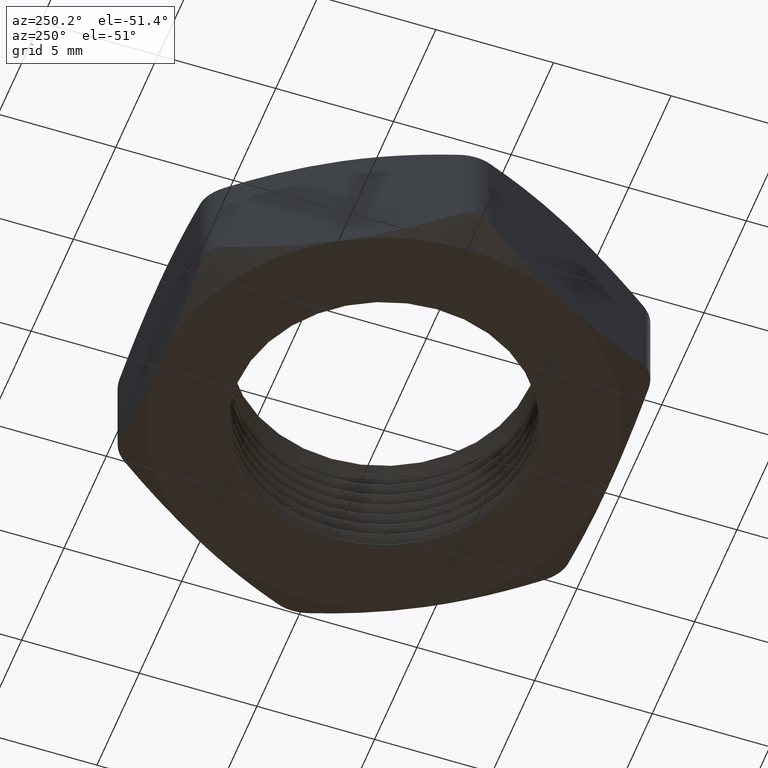
[diagram: clean part render]
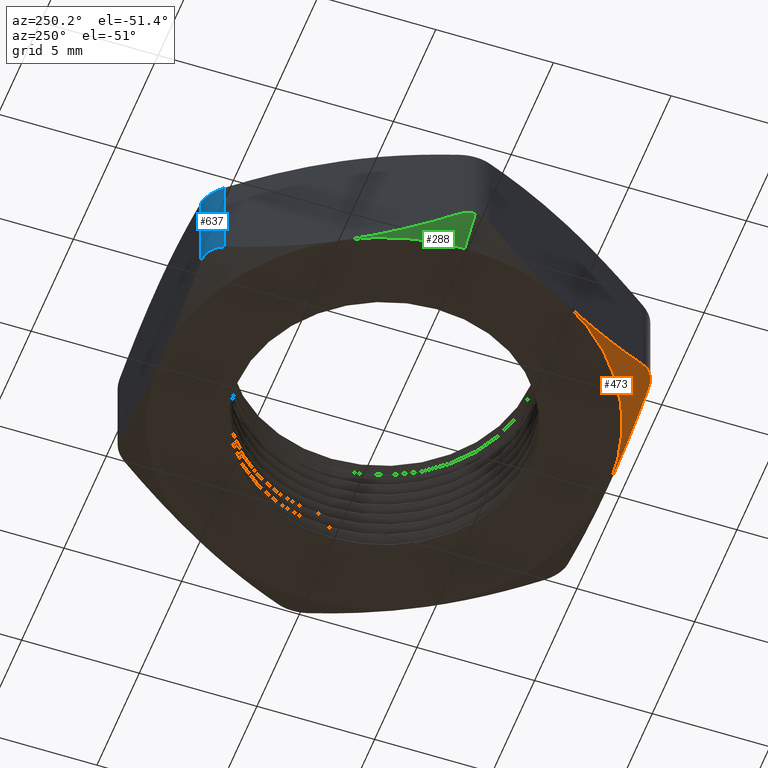
[diagram: same view with three faces highlighted in distinct colors, each labeled with its STEP entity id]
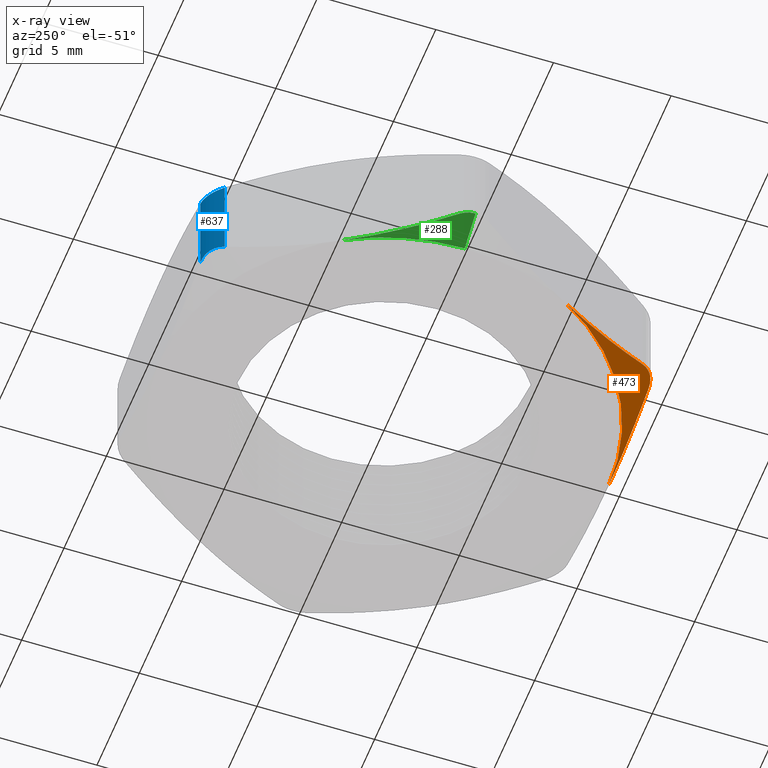
[diagram: x-ray of the same camera — body ghosted, the three highlighted faces saturated]
A machine part, auxiliary view with three faces highlighted in distinct colors.
The next image is the same camera in x-ray (body ghosted, the three faces saturated) — at least one of them is partly hidden behind the body in this view.
Their STEP definitions:

[orange] entity #473 — the highlighted conical surface has half-angle 60 deg.
#358 = EDGE_CURVE ( 'NONE', #371, #360, #1435, .T. ) ;
#360 = VERTEX_POINT ( 'NONE', #1434 ) ;
#371 = VERTEX_POINT ( 'NONE', #1471 ) ;
#407 = ORIENTED_EDGE ( 'NONE', *, *, #515, .T. ) ;
#473 = ADVANCED_FACE ( 'NONE', ( #1672 ), #1671, .T. ) ;
#474 = EDGE_LOOP ( 'NONE', ( #475, #476, #1067, #407 ) ) ;
#475 = ORIENTED_EDGE ( 'NONE', *, *, #358, .T. ) ;
#476 = ORIENTED_EDGE ( 'NONE', *, *, #477, .T. ) ;
#477 = EDGE_CURVE ( 'NONE', #360, #580, #1715, .T. ) ;
#515 = EDGE_CURVE ( 'NONE', #581, #371, #1814, .T. ) ;
#579 = EDGE_CURVE ( 'NONE', #580, #581, #1942, .T. ) ;
#580 = VERTEX_POINT ( 'NONE', #1941 ) ;
#581 = VERTEX_POINT ( 'NONE', #1940 ) ;
#1067 = ORIENTED_EDGE ( 'NONE', *, *, #579, .T. ) ;
#1434 = CARTESIAN_POINT ( 'NONE',  ( -0.1876388374865758400, -0.3749999999999996700, 0.02559096649277545600 ) ) ;
#1435 = B_SPLINE_CURVE_WITH_KNOTS ( 'NONE', 3,
 ( #1491, #1490, #1489, #1488, #1487, #1486, #1485, #1484 ),
 .UNSPECIFIED., .F., .F.,
 ( 4, 2, 2, 4 ),
 ( 0.03361725975087986900, 0.03602257537325734300, 0.03722523318444608000, 0.03842789099563481700 ),
 .UNSPECIFIED. ) ;
#1471 = CARTESIAN_POINT ( 'NONE',  ( 0.0000000000000000000, -0.3749999999999999400, 0.0000000000000000000 ) ) ;
#1484 = CARTESIAN_POINT ( 'NONE',  ( -0.1876388374865758400, -0.3749999999999996700, 0.02559096649277545600 ) ) ;
#1485 = CARTESIAN_POINT ( 'NONE',  ( -0.1722455309494969900, -0.3749999999999996700, 0.02161407795025634500 ) ) ;
#1486 = CARTESIAN_POINT ( 'NONE',  ( -0.1566949507369401500, -0.3749999999999997800, 0.01799055944235977700 ) ) ;
#1487 = CARTESIAN_POINT ( 'NONE',  ( -0.1255872119684754400, -0.3749999999999996700, 0.01166408474380492000 ) ) ;
#1488 = CARTESIAN_POINT ( 'NONE',  ( -0.1099951275432414200, -0.3749999999999998300, 0.008951718205073061800 ) ) ;
#1489 = CARTESIAN_POINT ( 'NONE',  ( -0.06308929749123595700, -0.3749999999999995600, 0.002343398478373091100 ) ) ;
#1490 = CARTESIAN_POINT ( 'NONE',  ( -0.03164395997495451900, -0.3749999999999995600, -1.548669687814554800E-016 ) ) ;
#1491 = CARTESIAN_POINT ( 'NONE',  ( 0.0000000000000000000, -0.3749999999999999400, 0.0000000000000000000 ) ) ;
#1670 = CARTESIAN_POINT ( 'NONE',  ( 0.0000000000000000000, 0.0000000000000000000, 0.0000000000000000000 ) ) ;
#1671 = CONICAL_SURFACE ( 'NONE', #1718, 0.3749999999999999400, 1.047197551196600100 ) ;
#1672 = FACE_OUTER_BOUND ( 'NONE', #474, .T. ) ;
#1703 = CARTESIAN_POINT ( 'NONE',  ( -0.2309401076758609300, -0.3499999999999817100, 0.02559096649278397300 ) ) ;
#1704 = CARTESIAN_POINT ( 'NONE',  ( -0.2287861771308885000, -0.3537307171398539900, 0.02670391018491016800 ) ) ;
#1705 = CARTESIAN_POINT ( 'NONE',  ( -0.2261130213296672100, -0.3572286145739273500, 0.02757112303379831400 ) ) ;
#1706 = CARTESIAN_POINT ( 'NONE',  ( -0.2199651329053741400, -0.3633921482108344900, 0.02872861903395109600 ) ) ;
#1707 = CARTESIAN_POINT ( 'NONE',  ( -0.2164103667094367800, -0.3661280705683273000, 0.02902972366464797600 ) ) ;
#1708 = CARTESIAN_POINT ( 'NONE',  ( -0.2087936671125889500, -0.3705169448226570100, 0.02902591628531970400 ) ) ;
#1709 = CARTESIAN_POINT ( 'NONE',  ( -0.2046846759807705300, -0.3722082976401364100, 0.02872597259901621700 ) ) ;
#1710 = CARTESIAN_POINT ( 'NONE',  ( -0.1962172436646515400, -0.3744529566708903500, 0.02755516287873684800 ) ) ;
#1711 = CARTESIAN_POINT ( 'NONE',  ( -0.1919454149677806400, -0.3749999999999995600, 0.02670357856211546400 ) ) ;
#1712 = CARTESIAN_POINT ( 'NONE',  ( -0.1876388374865758400, -0.3749999999999996700, 0.02559096649277545600 ) ) ;
#1715 = B_SPLINE_CURVE_WITH_KNOTS ( 'NONE', 3,
 ( #1712, #1711, #1710, #1709, #1708, #1707, #1706, #1705, #1704, #1703 ),
 .UNSPECIFIED., .F., .F.,
 ( 4, 2, 2, 2, 4 ),
 ( 6.800515070357191700E-016, 0.0003344051723310512500, 0.0006688103446614223800, 0.001003215516991793600, 0.001337620689322164800 ),
 .UNSPECIFIED. ) ;
#1716 = DIRECTION ( 'NONE',  ( -1.000000000000000000, 0.0000000000000000000, 0.0000000000000000000 ) ) ;
#1717 = DIRECTION ( 'NONE',  ( 0.0000000000000000000, 0.0000000000000000000, 1.000000000000000000 ) ) ;
#1718 = AXIS2_PLACEMENT_3D ( 'NONE', #1670, #1717, #1716 ) ;
#1758 = CARTESIAN_POINT ( 'NONE',  ( 0.0000000000000000000, 0.0000000000000000000, 0.0000000000000000000 ) ) ;
#1811 = DIRECTION ( 'NONE',  ( 1.000000000000000000, 0.0000000000000000000, 0.0000000000000000000 ) ) ;
#1812 = DIRECTION ( 'NONE',  ( 0.0000000000000000000, 0.0000000000000000000, 1.000000000000000000 ) ) ;
#1813 = AXIS2_PLACEMENT_3D ( 'NONE', #1758, #1812, #1811 ) ;
#1814 = CIRCLE ( 'NONE', #1813, 0.3749999999999999400 ) ;
#1934 = CARTESIAN_POINT ( 'NONE',  ( -0.3247595264191645600, -0.1874999999999999200, 0.0000000000000000000 ) ) ;
#1935 = CARTESIAN_POINT ( 'NONE',  ( -0.3088166142333530500, -0.2151139339264343300, -2.184944830870148000E-016 ) ) ;
#1936 = CARTESIAN_POINT ( 'NONE',  ( -0.2930444559197779000, -0.2424321134705664500, 0.002377381589201940300 ) ) ;
#1937 = CARTESIAN_POINT ( 'NONE',  ( -0.2617931203539622900, -0.2965610144749436000, 0.01121127792037121200 ) ) ;
#1938 = CARTESIAN_POINT ( 'NONE',  ( -0.2463125204502326900, -0.3233742000398485700, 0.01764798529039910200 ) ) ;
#1939 = CARTESIAN_POINT ( 'NONE',  ( -0.2309401076758609300, -0.3499999999999817100, 0.02559096649278397300 ) ) ;
#1940 = CARTESIAN_POINT ( 'NONE',  ( -0.3247595264191645600, -0.1874999999999999200, 0.0000000000000000000 ) ) ;
#1941 = CARTESIAN_POINT ( 'NONE',  ( -0.2309401076758609300, -0.3499999999999817100, 0.02559096649278397300 ) ) ;
#1942 = B_SPLINE_CURVE_WITH_KNOTS ( 'NONE', 3,
 ( #1939, #1938, #1937, #1936, #1935, #1934 ),
 .UNSPECIFIED., .F., .F.,
 ( 4, 2, 4 ),
 ( 0.0007545642487503558100, 0.003159577114513160000, 0.005564589980275963700 ),
 .UNSPECIFIED. ) ;

[blue] entity #637 — the highlighted cylindrical surface (edge-blend (fillet) strip) has radius 1.27 mm, axis along (0, 0, -1).
#335 = EDGE_CURVE ( 'NONE', #356, #394, #1373, .T. ) ;
#355 = EDGE_CURVE ( 'NONE', #554, #356, #1441, .T. ) ;
#356 = VERTEX_POINT ( 'NONE', #1437 ) ;
#394 = VERTEX_POINT ( 'NONE', #1540 ) ;
#418 = EDGE_CURVE ( 'NONE', #573, #554, #1584, .T. ) ;
#554 = VERTEX_POINT ( 'NONE', #1846 ) ;
#572 = EDGE_CURVE ( 'NONE', #394, #573, #1909, .T. ) ;
#573 = VERTEX_POINT ( 'NONE', #1905 ) ;
#631 = ORIENTED_EDGE ( 'NONE', *, *, #335, .F. ) ;
#632 = ORIENTED_EDGE ( 'NONE', *, *, #355, .F. ) ;
#633 = EDGE_LOOP ( 'NONE', ( #631, #632, #1061, #1062 ) ) ;
#637 = ADVANCED_FACE ( 'NONE', ( #2088 ), #2087, .T. ) ;
#1061 = ORIENTED_EDGE ( 'NONE', *, *, #418, .F. ) ;
#1062 = ORIENTED_EDGE ( 'NONE', *, *, #572, .F. ) ;
#1373 = B_SPLINE_CURVE_WITH_KNOTS ( 'NONE', 3,
 ( #1432, #1431, #1430, #1429, #1428, #1427, #1426, #1425, #1424, #1423 ),
 .UNSPECIFIED., .F., .F.,
 ( 4, 2, 2, 2, 4 ),
 ( 6.765805186201501900E-016, 0.0003344051723310486000, 0.0006688103446614205400, 0.001003215516991792500, 0.001337620689322164500 ),
 .UNSPECIFIED. ) ;
#1423 = CARTESIAN_POINT ( 'NONE',  ( -0.2309401076758606500, 0.3499999999999819900, 0.1744090335072160100 ) ) ;
#1424 = CARTESIAN_POINT ( 'NONE',  ( -0.2287861771308881400, 0.3537307171398542100, 0.1732960898150897900 ) ) ;
#1425 = CARTESIAN_POINT ( 'NONE',  ( -0.2261130213296669300, 0.3572286145739277400, 0.1724288769662016300 ) ) ;
#1426 = CARTESIAN_POINT ( 'NONE',  ( -0.2199651329053737600, 0.3633921482108349300, 0.1712713809660488800 ) ) ;
#1427 = CARTESIAN_POINT ( 'NONE',  ( -0.2164103667094364200, 0.3661280705683276300, 0.1709702763353519500 ) ) ;
#1428 = CARTESIAN_POINT ( 'NONE',  ( -0.2087936671125885900, 0.3705169448226572900, 0.1709740837146802600 ) ) ;
#1429 = CARTESIAN_POINT ( 'NONE',  ( -0.2046846759807702000, 0.3722082976401368000, 0.1712740274009836900 ) ) ;
#1430 = CARTESIAN_POINT ( 'NONE',  ( -0.1962172436646512100, 0.3744529566708906200, 0.1724448371212631300 ) ) ;
#1431 = CARTESIAN_POINT ( 'NONE',  ( -0.1919454149677803600, 0.3749999999999998300, 0.1732964214378844300 ) ) ;
#1432 = CARTESIAN_POINT ( 'NONE',  ( -0.1876388374865757000, 0.3749999999999999400, 0.1744090335072244500 ) ) ;
#1437 = CARTESIAN_POINT ( 'NONE',  ( -0.1876388374865757000, 0.3749999999999999400, 0.1744090335072244500 ) ) ;
#1438 = DIRECTION ( 'NONE',  ( 0.0000000000000000000, 0.0000000000000000000, 1.000000000000000000 ) ) ;
#1439 = VECTOR ( 'NONE', #1438, 39.37007874015748100 ) ;
#1440 = CARTESIAN_POINT ( 'NONE',  ( -0.1876388374866283800, 0.3749999999999999400, 0.2000000000000000100 ) ) ;
#1441 = LINE ( 'NONE', #1440, #1439 ) ;
#1540 = CARTESIAN_POINT ( 'NONE',  ( -0.2309401076758606500, 0.3499999999999819900, 0.1744090335072160100 ) ) ;
#1575 = CARTESIAN_POINT ( 'NONE',  ( -0.2047242654336721400, 0.3721914671483002600, 0.02872861903394894500 ) ) ;
#1576 = CARTESIAN_POINT ( 'NONE',  ( -0.2088710267960134100, 0.3704809104968523300, 0.02902972366464706700 ) ) ;
#1577 = CARTESIAN_POINT ( 'NONE',  ( -0.2164802531927079400, 0.3660790922801534000, 0.02902591628532076200 ) ) ;
#1578 = CARTESIAN_POINT ( 'NONE',  ( -0.2199995032653187800, 0.3633662779848140800, 0.02872597259901807400 ) ) ;
#1579 = CARTESIAN_POINT ( 'NONE',  ( -0.2261771511668512200, 0.3571555960096046700, 0.02755516287873936000 ) ) ;
#1580 = CARTESIAN_POINT ( 'NONE',  ( -0.2287868189352704800, 0.3537296055020502400, 0.02670357856226540600 ) ) ;
#1581 = CARTESIAN_POINT ( 'NONE',  ( -0.2309401076758503000, 0.3499999999999999800, 0.02559096649278914900 ) ) ;
#1584 = B_SPLINE_CURVE_WITH_KNOTS ( 'NONE', 3,
 ( #1581, #1580, #1579, #1578, #1577, #1576, #1575, #1634, #1633, #1632 ),
 .UNSPECIFIED., .F., .F.,
 ( 4, 2, 2, 2, 4 ),
 ( 8.940560153363745000E-019, 0.0003344051723307281600, 0.0006688103446614554500, 0.001003215516992182800, 0.001337620689322910000 ),
 .UNSPECIFIED. ) ;
#1632 = CARTESIAN_POINT ( 'NONE',  ( -0.1876388374865756200, 0.3749999999999999400, 0.02559096649277557400 ) ) ;
#1633 = CARTESIAN_POINT ( 'NONE',  ( -0.1919466985765593000, 0.3750000000000025500, 0.02670391018491073700 ) ) ;
#1634 = CARTESIAN_POINT ( 'NONE',  ( -0.1963125445148795900, 0.3744339278849132000, 0.02757112303379337700 ) ) ;
#1846 = CARTESIAN_POINT ( 'NONE',  ( -0.1876388374865756200, 0.3749999999999999400, 0.02559096649277557400 ) ) ;
#1905 = CARTESIAN_POINT ( 'NONE',  ( -0.2309401076758503000, 0.3499999999999999800, 0.02559096649278914900 ) ) ;
#1906 = DIRECTION ( 'NONE',  ( 0.0000000000000000000, 0.0000000000000000000, -1.000000000000000000 ) ) ;
#1907 = VECTOR ( 'NONE', #1906, 39.37007874015748100 ) ;
#1908 = CARTESIAN_POINT ( 'NONE',  ( -0.2309401076758503000, 0.3499999999999999800, 0.2000000000000000100 ) ) ;
#1909 = LINE ( 'NONE', #1908, #1907 ) ;
#2082 = DIRECTION ( 'NONE',  ( -1.000000000000000000, 0.0000000000000000000, 0.0000000000000000000 ) ) ;
#2083 = DIRECTION ( 'NONE',  ( 0.0000000000000000000, 0.0000000000000000000, -1.000000000000000000 ) ) ;
#2084 = CARTESIAN_POINT ( 'NONE',  ( -0.1876388374866283800, 0.3249999999999999600, 0.2000000000000000100 ) ) ;
#2085 = AXIS2_PLACEMENT_3D ( 'NONE', #2084, #2083, #2082 ) ;
#2087 = CYLINDRICAL_SURFACE ( 'NONE', #2085, 0.05000000000000001000 ) ;
#2088 = FACE_OUTER_BOUND ( 'NONE', #633, .T. ) ;

[green] entity #288 — the highlighted conical surface has half-angle 60 deg.
#2 = VERTEX_POINT ( 'NONE', #813 ) ;
#7 = EDGE_CURVE ( 'NONE', #2, #265, #709, .T. ) ;
#10 = EDGE_CURVE ( 'NONE', #262, #2, #702, .T. ) ;
#16 = ORIENTED_EDGE ( 'NONE', *, *, #10, .T. ) ;
#232 = ORIENTED_EDGE ( 'NONE', *, *, #7, .T. ) ;
#244 = ORIENTED_EDGE ( 'NONE', *, *, #248, .T. ) ;
#248 = EDGE_CURVE ( 'NONE', #266, #262, #1181, .T. ) ;
#262 = VERTEX_POINT ( 'NONE', #1280 ) ;
#263 = ORIENTED_EDGE ( 'NONE', *, *, #264, .T. ) ;
#264 = EDGE_CURVE ( 'NONE', #265, #266, #1278, .T. ) ;
#265 = VERTEX_POINT ( 'NONE', #1279 ) ;
#266 = VERTEX_POINT ( 'NONE', #1242 ) ;
#288 = ADVANCED_FACE ( 'NONE', ( #1203 ), #1202, .T. ) ;
#289 = EDGE_LOOP ( 'NONE', ( #263, #244, #16, #232 ) ) ;
#695 = CARTESIAN_POINT ( 'NONE',  ( -0.4185789451624682400, 0.02500000000001802500, 0.02559096649278401100 ) ) ;
#696 = CARTESIAN_POINT ( 'NONE',  ( -0.4207294041380169000, 0.02127529579478049500, 0.02670211641244794500 ) ) ;
#697 = CARTESIAN_POINT ( 'NONE',  ( -0.4224201646834368500, 0.01721831756676464900, 0.02756835478330191300 ) ) ;
#698 = CARTESIAN_POINT ( 'NONE',  ( -0.4246838449260744200, 0.008826956808419474100, 0.02872578618615685000 ) ) ;
#699 = CARTESIAN_POINT ( 'NONE',  ( -0.4252776749732539200, 0.004388562669415095800, 0.02902782918003678200 ) ) ;
#700 = CARTESIAN_POINT ( 'NONE',  ( -0.4252776749734099000, 1.775217353842526000E-014, 0.02902782918011619400 ) ) ;
#702 = B_SPLINE_CURVE_WITH_KNOTS ( 'NONE', 3,
 ( #700, #699, #698, #697, #696, #695 ),
 .UNSPECIFIED., .F., .F.,
 ( 4, 2, 4 ),
 ( 0.0006698882910001476900, 0.001003754490161114500, 0.001337620689322081300 ),
 .UNSPECIFIED. ) ;
#703 = CARTESIAN_POINT ( 'NONE',  ( -0.3247595264191644500, 0.1874999999999999700, 0.0000000000000000000 ) ) ;
#704 = CARTESIAN_POINT ( 'NONE',  ( -0.3407024386049759500, 0.1598860660735655100, -2.383030488613870000E-016 ) ) ;
#705 = CARTESIAN_POINT ( 'NONE',  ( -0.3564745969185511000, 0.1325678865294334100, 0.002377381589201893500 ) ) ;
#706 = CARTESIAN_POINT ( 'NONE',  ( -0.3877259324843668200, 0.07843898552505626500, 0.01121127792037118600 ) ) ;
#707 = CARTESIAN_POINT ( 'NONE',  ( -0.4032065323880963400, 0.05162579996015106300, 0.01764798529039912600 ) ) ;
#708 = CARTESIAN_POINT ( 'NONE',  ( -0.4185789451624682400, 0.02500000000001802500, 0.02559096649278401100 ) ) ;
#709 = B_SPLINE_CURVE_WITH_KNOTS ( 'NONE', 3,
 ( #708, #707, #706, #705, #704, #703 ),
 .UNSPECIFIED., .F., .F.,
 ( 4, 2, 4 ),
 ( 0.0007545642487503557000, 0.003159577114513162200, 0.005564589980275968900 ),
 .UNSPECIFIED. ) ;
#813 = CARTESIAN_POINT ( 'NONE',  ( -0.4185789451624682400, 0.02500000000001802500, 0.02559096649278401100 ) ) ;
#1178 = DIRECTION ( 'NONE',  ( -0.8660254037844397100, 0.0000000000000000000, 0.4999999999999979500 ) ) ;
#1179 = VECTOR ( 'NONE', #1178, 39.37007874015748900 ) ;
#1180 = CARTESIAN_POINT ( 'NONE',  ( -0.3749999999999999400, 0.0000000000000000000, 0.0000000000000000000 ) ) ;
#1181 = LINE ( 'NONE', #1180, #1179 ) ;
#1197 = DIRECTION ( 'NONE',  ( -1.000000000000000000, 0.0000000000000000000, 0.0000000000000000000 ) ) ;
#1198 = DIRECTION ( 'NONE',  ( 0.0000000000000000000, 0.0000000000000000000, 1.000000000000000000 ) ) ;
#1199 = CARTESIAN_POINT ( 'NONE',  ( 0.0000000000000000000, 0.0000000000000000000, 0.0000000000000000000 ) ) ;
#1200 = AXIS2_PLACEMENT_3D ( 'NONE', #1199, #1198, #1197 ) ;
#1202 = CONICAL_SURFACE ( 'NONE', #1200, 0.3749999999999999400, 1.047197551196600100 ) ;
#1203 = FACE_OUTER_BOUND ( 'NONE', #289, .T. ) ;
#1242 = CARTESIAN_POINT ( 'NONE',  ( -0.3749999999999999400, 0.0000000000000000000, 0.0000000000000000000 ) ) ;
#1274 = DIRECTION ( 'NONE',  ( 1.000000000000000000, 0.0000000000000000000, 0.0000000000000000000 ) ) ;
#1275 = DIRECTION ( 'NONE',  ( 0.0000000000000000000, 0.0000000000000000000, 1.000000000000000000 ) ) ;
#1276 = CARTESIAN_POINT ( 'NONE',  ( 0.0000000000000000000, 0.0000000000000000000, 0.0000000000000000000 ) ) ;
#1277 = AXIS2_PLACEMENT_3D ( 'NONE', #1276, #1275, #1274 ) ;
#1278 = CIRCLE ( 'NONE', #1277, 0.3749999999999999400 ) ;
#1279 = CARTESIAN_POINT ( 'NONE',  ( -0.3247595264191644500, 0.1874999999999999700, 0.0000000000000000000 ) ) ;
#1280 = CARTESIAN_POINT ( 'NONE',  ( -0.4252776749734099000, 1.775217353842526000E-014, 0.02902782918011619400 ) ) ;